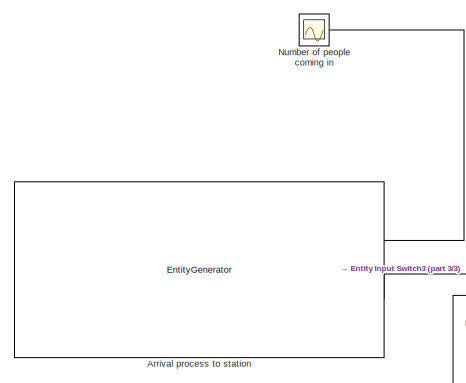
[diagram: root canvas - part 1/3, top left region]
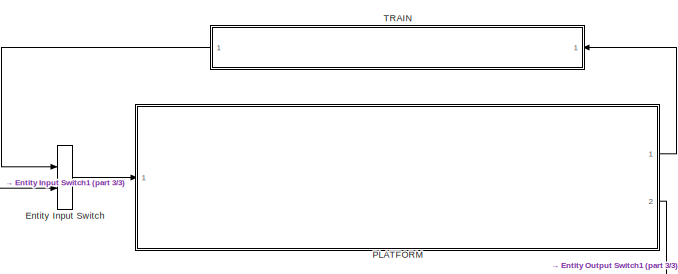
[diagram: root canvas - part 2/3, middle right region]
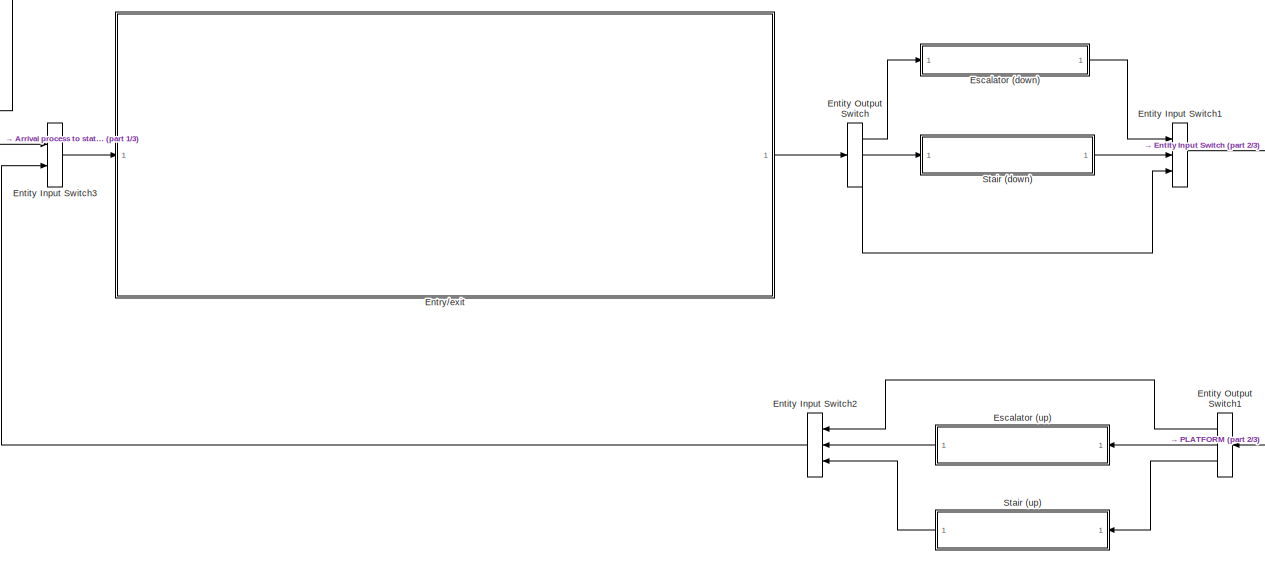
[diagram: root canvas - part 3/3, center side, full height]
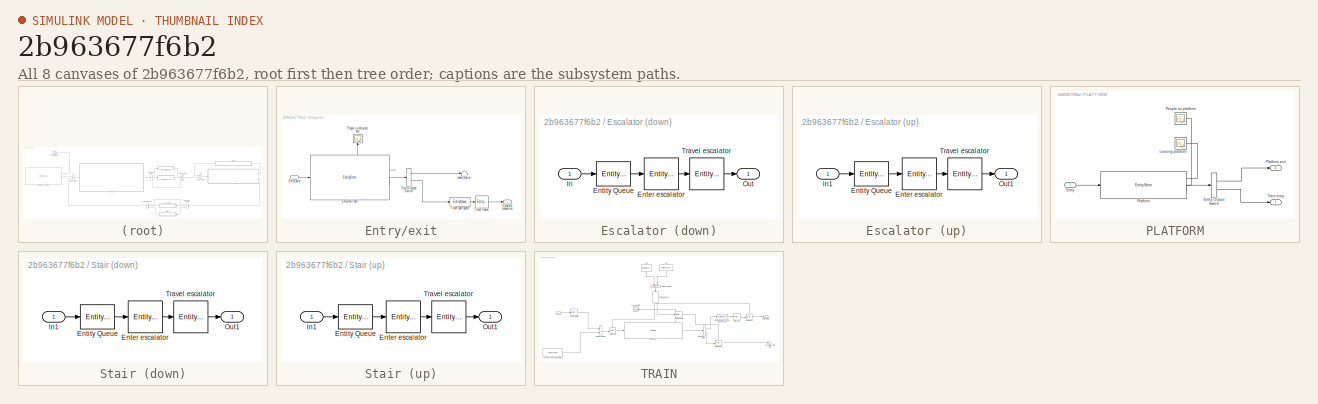
[diagram: thumbnail index - all 8 canvases of the model, root first then tree order]
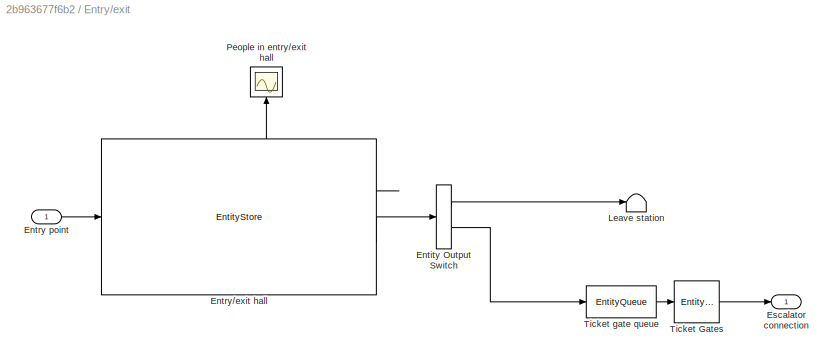
MODEL slx_2b963677f6b2
KIND model
CONFIG AbsTol = auto
CONFIG EnableMultiTasking = off
CONFIG FixedStep = auto
CONFIG MaxStep = auto
CONFIG MinStep = auto
CONFIG RelTol = 1e-3
CONFIG SampleTimeConstraint = Unconstrained
CONFIG Solver = VariableStepAuto
CONFIG SolverName = VariableStepAuto
CONFIG StartTime = 0.0
CONFIG StopTime = 3600
BLOCK [EntityGenerator] Arrival process to station
  AttributeInitialValue = 2
  AttributeName = Incoming
  EntityType = Structured
  EntityTypeName = Entity
  GenerateEntityAtSimulationStart = off
  IntergenerationTimeAction = dt = poissrnd(50);
  NumberEntitiesDeparted = on
  OutputPortMap = o0,o3
  OutputPortMessageModes = n,m
  Ports = [0, 2]
  TimeSource = MATLAB action
BLOCK [EntityInputSwitch] Entity Input Switch
  InputPortMap = u1,u2
  InputPortMessageModes = m,m
  OutputPortMap = o0
  OutputPortMessageModes = m
  Ports = [2, 1]
BLOCK [EntityInputSwitch] Entity Input Switch1
  InputPortMap = u1,u2,u3
  InputPortMessageModes = m,m,m
  NumberInputPorts = 3
  OutputPortMap = o0
  OutputPortMessageModes = m
  Ports = [3, 1]
BLOCK [EntityInputSwitch] Entity Input Switch2
  InputPortMap = u1,u2,u3
  InputPortMessageModes = m,m,m
  NumberInputPorts = 3
  OutputPortMap = o0
  OutputPortMessageModes = m
  Ports = [3, 1]
BLOCK [EntityInputSwitch] Entity Input Switch3
  InputPortMap = u1,u2
  InputPortMessageModes = m,m
  OutputPortMap = o0
  OutputPortMessageModes = m
  Ports = [2, 1]
BLOCK [EntityOutputSwitch] Entity Output Switch
  InputPortMap = u1
  InputPortMessageModes = m
  NumberOutputPorts = 3
  OutputPortMap = o0,o1,o2
  OutputPortMessageModes = m,m,m
  Ports = [1, 3]
  SwitchAttributeName = Attribute1
  SwitchingCriterion = Equiprobable
BLOCK [EntityOutputSwitch] Entity Output Switch1
  InputPortMap = u1
  InputPortMessageModes = m
  NumberOutputPorts = 3
  OutputPortMap = o0,o1,o2
  OutputPortMessageModes = m,m,m
  Ports = [1, 3]
  SwitchAttributeName = Attribute1
BLOCK [SubSystem] Entry//exit
  Ports = [1, 1]
  RequestExecContextInheritance = off
BLOCK [EntityOutputSwitch] Entry//exit/Entity Output Switch
  InputPortMap = u1
  InputPortMessageModes = m
  OutputPortMap = o0,o1
  OutputPortMessageModes = m,m
  Ports = [1, 2]
  SwitchAttributeName = Incoming
  SwitchingCriterion = From attribute
BLOCK [Inport] Entry//exit/Entry point
  IconDisplay = Port number
BLOCK [EntityStore] Entry//exit/Entry//exit hall
  Capacity = 200
  InputPortMap = u0
  InputPortMessageModes = m
  NumberEntitiesInBlock = on
  OutputPortMap = o1,o4
  OutputPortMessageModes = n,m
  Ports = [1, 2]
BLOCK [Outport] Entry//exit/Escalator connection
  IconDisplay = Port number
BLOCK [Terminator] Entry//exit/Leave station
BLOCK [Scope] Entry//exit/People in entry//exit hall 
  Floating = off
  NumInputPorts = 1
  Ports = [1]
  ScopeSpecificationString = Simulink.scopes.TimeScopeBlockCfg('CurrentConfiguration', extmgr.ConfigurationSet(extmgr.Configuration('Core','General UI',true),extmgr.Configuration('Core','Source UI',true),extmgr.Configuration('Sources','WiredSimulink',true,'DataLoggingVariableName','ScopeData4'),extmgr.Configuration('Visuals','Time Domain',true,'SerializedDisplays',{struct('MinYLimReal','-0.125','MaxYLimReal','1.125','YLabelRe...<+1390ch>
BLOCK [EntityServer] Entry//exit/Ticket Gates
  Capacity = 10
  InputPortMap = u2
  InputPortMessageModes = m
  OutputPortMap = o9
  OutputPortMessageModes = m
  Ports = [1, 1]
  ServiceTimeValue = 1
BLOCK [EntityQueue] Entry//exit/Ticket gate queue
  Capacity = inf
  InputPortMap = u0
  InputPortMessageModes = m
  OutputPortMap = o5
  OutputPortMessageModes = m
  Ports = [1, 1]
BLOCK [SubSystem] Escalator (down)
  Ports = [1, 1]
  RequestExecContextInheritance = off
BLOCK [EntityServer] Escalator (down)/Enter escalator
  Capacity = 1
  InputPortMap = u2
  InputPortMessageModes = m
  OutputPortMap = o9
  OutputPortMessageModes = m
  Ports = [1, 1]
  ServiceTimeValue = 1
BLOCK [EntityQueue] Escalator (down)/Entity Queue
  Capacity = inf
  InputPortMap = u0
  InputPortMessageModes = m
  OutputPortMap = o5
  OutputPortMessageModes = m
  Ports = [1, 1]
BLOCK [Inport] Escalator (down)/In
  IconDisplay = Port number
BLOCK [Outport] Escalator (down)/Out
  IconDisplay = Port number
BLOCK [EntityServer] Escalator (down)/Travel escalator
  Capacity = inf
  InputPortMap = u2
  InputPortMessageModes = m
  OutputPortMap = o9
  OutputPortMessageModes = m
  Ports = [1, 1]
  ServiceTimeValue = 20
BLOCK [SubSystem] Escalator (up)
  Ports = [1, 1]
  RequestExecContextInheritance = off
BLOCK [EntityServer] Escalator (up)/Enter escalator
  Capacity = 1
  InputPortMap = u2
  InputPortMessageModes = m
  OutputPortMap = o9
  OutputPortMessageModes = m
  Ports = [1, 1]
  ServiceTimeValue = 1
BLOCK [EntityQueue] Escalator (up)/Entity Queue
  Capacity = inf
  InputPortMap = u0
  InputPortMessageModes = m
  OutputPortMap = o5
  OutputPortMessageModes = m
  Ports = [1, 1]
BLOCK [Inport] Escalator (up)/In1
  IconDisplay = Port number
BLOCK [Outport] Escalator (up)/Out1
  IconDisplay = Port number
BLOCK [EntityServer] Escalator (up)/Travel escalator
  Capacity = inf
  InputPortMap = u2
  InputPortMessageModes = m
  OutputPortMap = o9
  OutputPortMessageModes = m
  Ports = [1, 1]
  ServiceTimeValue = 40
BLOCK [Scope] Number of people coming in
  Floating = off
  NumInputPorts = 1
  Ports = [1]
  ScopeSpecificationString = Simulink.scopes.TimeScopeBlockCfg('CurrentConfiguration', extmgr.ConfigurationSet(extmgr.Configuration('Core','General UI',true),extmgr.Configuration('Core','Source UI',true),extmgr.Configuration('Sources','WiredSimulink',true,'DataLoggingVariableName','ScopeData2'),extmgr.Configuration('Visuals','Time Domain',true,'SerializedDisplays',{struct('MinYLimReal','-7.875','MaxYLimReal','80.875','YLabelR...<+1405ch>
BLOCK [SubSystem] PLATFORM
  Ports = [1, 2]
  RequestExecContextInheritance = off
BLOCK [EntityOutputSwitch] PLATFORM/Entity Output Switch
  InputPortMap = u1
  InputPortMessageModes = m
  OutputPortMap = o0,o1
  OutputPortMessageModes = m,m
  Ports = [1, 2]
  SwitchAttributeName = Incoming
  SwitchingCriterion = From attribute
BLOCK [Inport] PLATFORM/Entry
  IconDisplay = Port number
BLOCK [Scope] PLATFORM/Leaving platform 
  Floating = off
  NumInputPorts = 1
  Ports = [1]
  ScopeSpecificationString = Simulink.scopes.TimeScopeBlockCfg('CurrentConfiguration', extmgr.ConfigurationSet(extmgr.Configuration('Core','General UI',true),extmgr.Configuration('Core','Source UI',true),extmgr.Configuration('Sources','WiredSimulink',true,'DataLoggingVariableName','ScopeData1'),extmgr.Configuration('Visuals','Time Domain',true,'SerializedDisplays',{struct('MinYLimReal','-9.375','MaxYLimReal','94.375','YLabelR...<+1389ch>
BLOCK [Scope] PLATFORM/People on platform
  Floating = off
  NumInputPorts = 1
  Ports = [1]
  ScopeSpecificationString = Simulink.scopes.TimeScopeBlockCfg('CurrentConfiguration', extmgr.ConfigurationSet(extmgr.Configuration('Core','General UI',true),extmgr.Configuration('Core','Source UI',true),extmgr.Configuration('Sources','WiredSimulink',true,'DataLoggingVariableName','ScopeData3'),extmgr.Configuration('Visuals','Time Domain',true,'SerializedDisplays',{struct('MinYLimReal','-62.5','MaxYLimReal','562.5','YLabelRea...<+1429ch>
BLOCK [EntityStore] PLATFORM/Platform 
  Capacity = 500
  InputPortMap = u0
  InputPortMessageModes = m
  NumberEntitiesDeparted = on
  NumberEntitiesInBlock = on
  OutputPortMap = o0,o1,o4
  OutputPortMessageModes = n,n,m
  Ports = [1, 3]
BLOCK [Outport] PLATFORM/Platform exit
  IconDisplay = Port number
  Port = 2
BLOCK [Outport] PLATFORM/Train entry
  IconDisplay = Port number
BLOCK [SubSystem] Stair (down)
  Ports = [1, 1]
  RequestExecContextInheritance = off
BLOCK [EntityServer] Stair (down)/Enter escalator
  Capacity = 1
  InputPortMap = u2
  InputPortMessageModes = m
  OutputPortMap = o9
  OutputPortMessageModes = m
  Ports = [1, 1]
  ServiceTimeValue = 1
BLOCK [EntityQueue] Stair (down)/Entity Queue
  Capacity = inf
  InputPortMap = u0
  InputPortMessageModes = m
  OutputPortMap = o5
  OutputPortMessageModes = m
  Ports = [1, 1]
BLOCK [Inport] Stair (down)/In1
  IconDisplay = Port number
BLOCK [Outport] Stair (down)/Out1
  IconDisplay = Port number
BLOCK [EntityServer] Stair (down)/Travel escalator
  Capacity = inf
  InputPortMap = u2
  InputPortMessageModes = m
  OutputPortMap = o9
  OutputPortMessageModes = m
  Ports = [1, 1]
  ServiceTimeValue = 40
BLOCK [SubSystem] Stair (up)
  Ports = [1, 1]
  RequestExecContextInheritance = off
BLOCK [EntityServer] Stair (up)/Enter escalator
  Capacity = 1
  InputPortMap = u2
  InputPortMessageModes = m
  OutputPortMap = o9
  OutputPortMessageModes = m
  Ports = [1, 1]
  ServiceTimeValue = 1
BLOCK [EntityQueue] Stair (up)/Entity Queue
  Capacity = inf
  InputPortMap = u0
  InputPortMessageModes = m
  OutputPortMap = o5
  OutputPortMessageModes = m
  Ports = [1, 1]
BLOCK [Inport] Stair (up)/In1
  IconDisplay = Port number
BLOCK [Outport] Stair (up)/Out1
  IconDisplay = Port number
BLOCK [EntityServer] Stair (up)/Travel escalator
  Capacity = inf
  InputPortMap = u2
  InputPortMessageModes = m
  OutputPortMap = o9
  OutputPortMessageModes = m
  Ports = [1, 1]
  ServiceTimeValue = 40
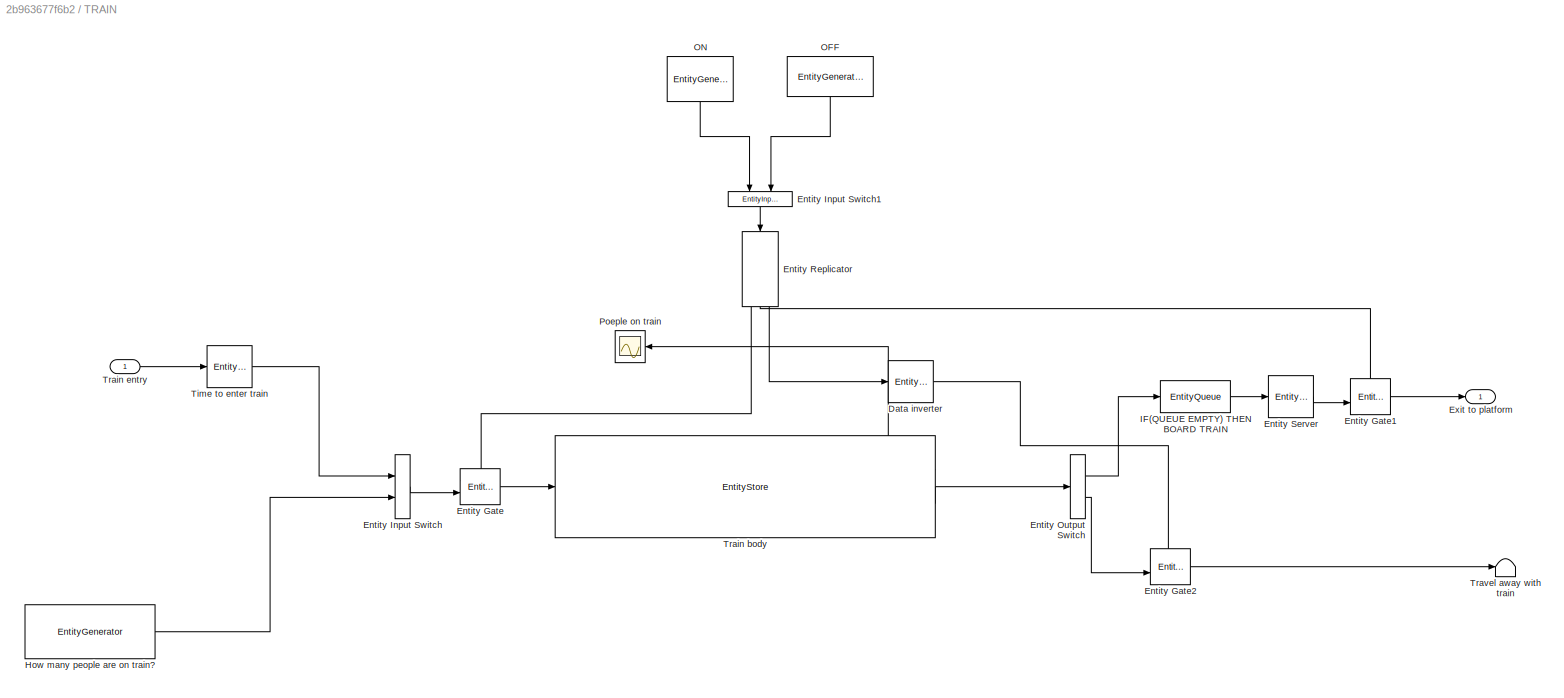
BLOCK [SubSystem] TRAIN
  Ports = [1, 1]
  RequestExecContextInheritance = off
BLOCK [EntityServer] TRAIN/Data inverter
  Capacity = inf
  EntryAction = entity = 1 - entity
  InputPortMap = u2
  InputPortMessageModes = m
  OutputPortMap = o9
  OutputPortMessageModes = m
  Ports = [1, 1]
  ServiceTimeValue = 0
BLOCK [EntityGate] TRAIN/Entity Gate
  InputPortMap = u0,u1
  InputPortMessageModes = m,m
  OutputPortMap = o0
  OutputPortMessageModes = m
  Ports = [2, 1]
BLOCK [EntityGate] TRAIN/Entity Gate1
  InputPortMap = u0,u1
  InputPortMessageModes = m,m
  OutputPortMap = o0
  OutputPortMessageModes = m
  Ports = [2, 1]
BLOCK [EntityGate] TRAIN/Entity Gate2
  InputPortMap = u0,u1
  InputPortMessageModes = m,m
  OutputPortMap = o0
  OutputPortMessageModes = m
  Ports = [2, 1]
BLOCK [EntityInputSwitch] TRAIN/Entity Input Switch
  InputPortMap = u1,u2
  InputPortMessageModes = m,m
  OutputPortMap = o0
  OutputPortMessageModes = m
  Ports = [2, 1]
BLOCK [EntityInputSwitch] TRAIN/Entity Input Switch1
  InputPortMap = u1,u2
  InputPortMessageModes = m,m
  OutputPortMap = o0
  OutputPortMessageModes = m
  Ports = [2, 1]
BLOCK [EntityOutputSwitch] TRAIN/Entity Output Switch
  InputPortMap = u1
  InputPortMessageModes = m
  OutputPortMap = o0,o1
  OutputPortMessageModes = m,m
  Ports = [1, 2]
  SwitchAttributeName = Incoming
  SwitchingCriterion = From attribute
BLOCK [EntityReplicator] TRAIN/Entity Replicator
  HoldOriginalEntityUntilAllReplicasDepart = on
  InputPortMap = u0
  InputPortMessageModes = m
  NumberReplicas = 2
  OutputPortMap = o0,o1,o2
  OutputPortMessageModes = m,m,m
  Ports = [1, 3]
BLOCK [EntityServer] TRAIN/Entity Server
  Capacity = 1
  InputPortMap = u2
  InputPortMessageModes = m
  OutputPortMap = o9
  OutputPortMessageModes = m
  Ports = [1, 1]
  ServiceTimeValue = 1
BLOCK [Outport] TRAIN/Exit to platform
  IconDisplay = Port number
BLOCK [EntityGenerator] TRAIN/How many people are on train? 
  AttributeName = Incoming
  EntityType = Structured
  EntityTypeName = Entity
  GenerateAction = prob_incoming = 0.1\n\nentity.Incoming = 1 + (rand() > prob_incoming)
  GenerateEntityAtSimulationStart = off
  IntergenerationTimeAction = persistent entity_number\n\npeople_per_wave = 100\ntrain_periodicity = 16*60\n\nif isempty(entity_number)\n    entity_number = 1\nend\n\nif entity_number == 1\n    dt = train_periodicity - 60\n\nelseif mod(entity_number, people_per_wave) == 1\n    dt = train_periodicity\nelse\n    dt = 0\nend\n    \n        \n    \n    \nentity_number = entity_number + 1
  OutputPortMap = o3
  OutputPortMessageModes = m
  Ports = [0, 1]
  TimeSource = MATLAB action
BLOCK [EntityQueue] TRAIN/IF(QUEUE EMPTY) THEN BOARD TRAIN
  InputPortMap = u0
  InputPortMessageModes = m
  OutputPortMap = o5
  OutputPortMessageModes = m
  Ports = [1, 1]
BLOCK [EntityGenerator] TRAIN/OFF
  AttributeInitialValue = 0
  AttributeName = entity
  EntityTypeName = Entity
  GenerateEntityAtSimulationStart = off
  IntergenerationTimeAction = dt = 5;
  OutputPortMap = o3
  OutputPortMessageModes = m
  Period = 16*60
  Ports = [0, 1]
BLOCK [EntityGenerator] TRAIN/ON
  AttributeName = entity
  DataInitialValue = 1
  EntityTypeName = Entity
  GenerateEntityAtSimulationStart = off
  IntergenerationTimeAction = persistent first\nif isempty(first)\n    first = true;\n    dt = 15*60; \nelse\n    dt = 16*60;\nend
  OutputPortMap = o3
  OutputPortMessageModes = m
  Period = 5
  Ports = [0, 1]
  TimeSource = MATLAB action
BLOCK [Scope] TRAIN/Poeple on train
  Floating = off
  NumInputPorts = 1
  Ports = [1]
  ScopeSpecificationString = Simulink.scopes.TimeScopeBlockCfg('CurrentConfiguration', extmgr.ConfigurationSet(extmgr.Configuration('Core','General UI',true),extmgr.Configuration('Core','Source UI',true),extmgr.Configuration('Sources','WiredSimulink',true,'DataLoggingVariableName','ScopeData1'),extmgr.Configuration('Visuals','Time Domain',true,'SerializedDisplays',{struct('MinYLimReal','51.06333','MaxYLimReal','167.16432','YL...<+1454ch>
BLOCK [EntityServer] TRAIN/Time to enter train
  Capacity = 1
  InputPortMap = u2
  InputPortMessageModes = m
  OutputPortMap = o9
  OutputPortMessageModes = m
  Ports = [1, 1]
  ServiceTimeAction = % Time to enter train should depend on how\n% many people are leaving / staying on the train\ndt = 1;
  ServiceTimeSource = MATLAB action
BLOCK [EntityStore] TRAIN/Train body
  Capacity = 200
  InputPortMap = u0
  InputPortMessageModes = m
  NumberEntitiesInBlock = on
  OutputPortMap = o1,o4
  OutputPortMessageModes = n,m
  Ports = [1, 2]
BLOCK [Inport] TRAIN/Train entry
  IconDisplay = Port number
BLOCK [Terminator] TRAIN/Travel away with train
LINE Arrival process to station:1 -> Number of people coming in:1
LINE Arrival process to station:2 -> Entity Input Switch3:1
LINE Entity Input Switch1:1 -> Entity Input Switch:2
LINE Entity Input Switch2:1 -> Entity Input Switch3:2
LINE Entity Input Switch3:1 -> Entry//exit:1
LINE Entity Input Switch:1 -> PLATFORM:1
LINE Entity Output Switch1:1 -> Entity Input Switch2:1
LINE Entity Output Switch1:2 -> Escalator (up):1
LINE Entity Output Switch1:3 -> Stair (up):1
LINE Entity Output Switch:1 -> Escalator (down):1
LINE Entity Output Switch:2 -> Stair (down):1
LINE Entity Output Switch:3 -> Entity Input Switch1:3
LINE Entry//exit/Entity Output Switch:1 -> Entry//exit/Leave station:1
LINE Entry//exit/Entity Output Switch:2 -> Entry//exit/Ticket gate queue:1
LINE Entry//exit/Entry point:1 -> Entry//exit/Entry//exit hall:1
LINE Entry//exit/Entry//exit hall:1 -> Entry//exit/People in entry//exit hall :1
LINE Entry//exit/Entry//exit hall:2 -> Entry//exit/Entity Output Switch:1
LINE Entry//exit/Ticket Gates:1 -> Entry//exit/Escalator connection:1
LINE Entry//exit/Ticket gate queue:1 -> Entry//exit/Ticket Gates:1
LINE Entry//exit:1 -> Entity Output Switch:1
LINE Escalator (down)/Enter escalator:1 -> Escalator (down)/Travel escalator:1
LINE Escalator (down)/Entity Queue:1 -> Escalator (down)/Enter escalator:1
LINE Escalator (down)/In:1 -> Escalator (down)/Entity Queue:1
LINE Escalator (down)/Travel escalator:1 -> Escalator (down)/Out:1
LINE Escalator (down):1 -> Entity Input Switch1:1
LINE Escalator (up)/Enter escalator:1 -> Escalator (up)/Travel escalator:1
LINE Escalator (up)/Entity Queue:1 -> Escalator (up)/Enter escalator:1
LINE Escalator (up)/In1:1 -> Escalator (up)/Entity Queue:1
LINE Escalator (up)/Travel escalator:1 -> Escalator (up)/Out1:1
LINE Escalator (up):1 -> Entity Input Switch2:2
LINE PLATFORM/Entity Output Switch:1 -> PLATFORM/Platform exit:1
LINE PLATFORM/Entity Output Switch:2 -> PLATFORM/Train entry:1
LINE PLATFORM/Entry:1 -> PLATFORM/Platform :1
LINE PLATFORM/Platform :1 -> PLATFORM/Leaving platform :1
LINE PLATFORM/Platform :2 -> PLATFORM/People on platform:1
LINE PLATFORM/Platform :3 -> PLATFORM/Entity Output Switch:1
LINE PLATFORM:1 -> TRAIN:1
LINE PLATFORM:2 -> Entity Output Switch1:1
LINE Stair (down)/Enter escalator:1 -> Stair (down)/Travel escalator:1
LINE Stair (down)/Entity Queue:1 -> Stair (down)/Enter escalator:1
LINE Stair (down)/In1:1 -> Stair (down)/Entity Queue:1
LINE Stair (down)/Travel escalator:1 -> Stair (down)/Out1:1
LINE Stair (down):1 -> Entity Input Switch1:2
LINE Stair (up)/Enter escalator:1 -> Stair (up)/Travel escalator:1
LINE Stair (up)/Entity Queue:1 -> Stair (up)/Enter escalator:1
LINE Stair (up)/In1:1 -> Stair (up)/Entity Queue:1
LINE Stair (up)/Travel escalator:1 -> Stair (up)/Out1:1
LINE Stair (up):1 -> Entity Input Switch2:3
LINE TRAIN/Data inverter:1 -> TRAIN/Entity Gate2:1
LINE TRAIN/Entity Gate1:1 -> TRAIN/Exit to platform:1
LINE TRAIN/Entity Gate2:1 -> TRAIN/Travel away with train:1
LINE TRAIN/Entity Gate:1 -> TRAIN/Train body:1
LINE TRAIN/Entity Input Switch1:1 -> TRAIN/Entity Replicator:1
LINE TRAIN/Entity Input Switch:1 -> TRAIN/Entity Gate:2
LINE TRAIN/Entity Output Switch:1 -> TRAIN/IF(QUEUE EMPTY) THEN BOARD TRAIN:1
LINE TRAIN/Entity Output Switch:2 -> TRAIN/Entity Gate2:2
LINE TRAIN/Entity Replicator:1 -> TRAIN/Entity Gate:1
LINE TRAIN/Entity Replicator:2 -> TRAIN/Entity Gate1:1
LINE TRAIN/Entity Replicator:3 -> TRAIN/Data inverter:1
LINE TRAIN/Entity Server:1 -> TRAIN/Entity Gate1:2
LINE TRAIN/How many people are on train? :1 -> TRAIN/Entity Input Switch:2
LINE TRAIN/IF(QUEUE EMPTY) THEN BOARD TRAIN:1 -> TRAIN/Entity Server:1
LINE TRAIN/OFF:1 -> TRAIN/Entity Input Switch1:2
LINE TRAIN/ON:1 -> TRAIN/Entity Input Switch1:1
LINE TRAIN/Time to enter train:1 -> TRAIN/Entity Input Switch:1
LINE TRAIN/Train body:1 -> TRAIN/Poeple on train:1
LINE TRAIN/Train body:2 -> TRAIN/Entity Output Switch:1
LINE TRAIN/Train entry:1 -> TRAIN/Time to enter train:1
LINE TRAIN:1 -> Entity Input Switch:1
